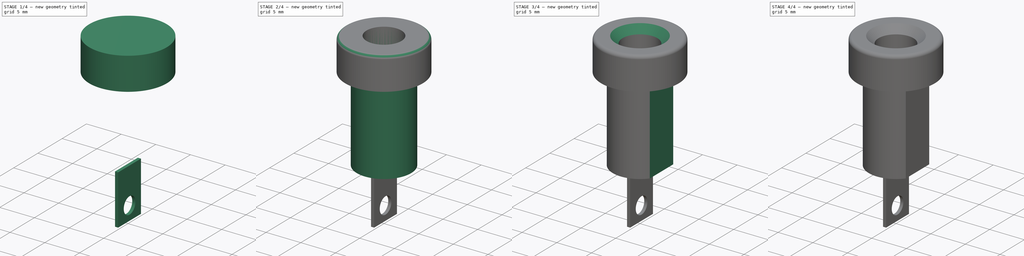
[diagram: build sequence overview — one tinted view per stage of 4, left to right]
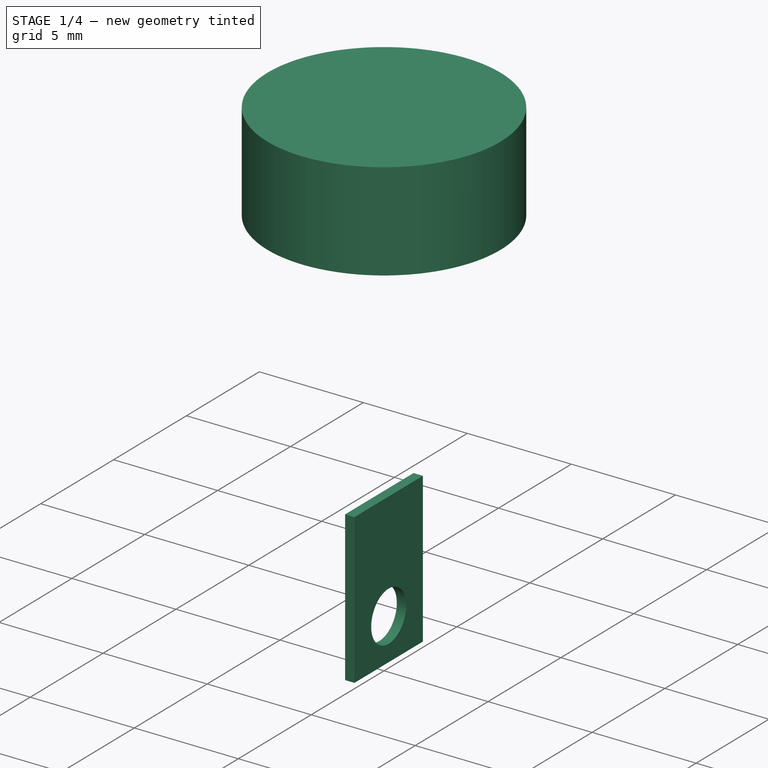
[diagram: stage 1 of 4 — iso view after this stage's code; geometry added in this stage tinted green]
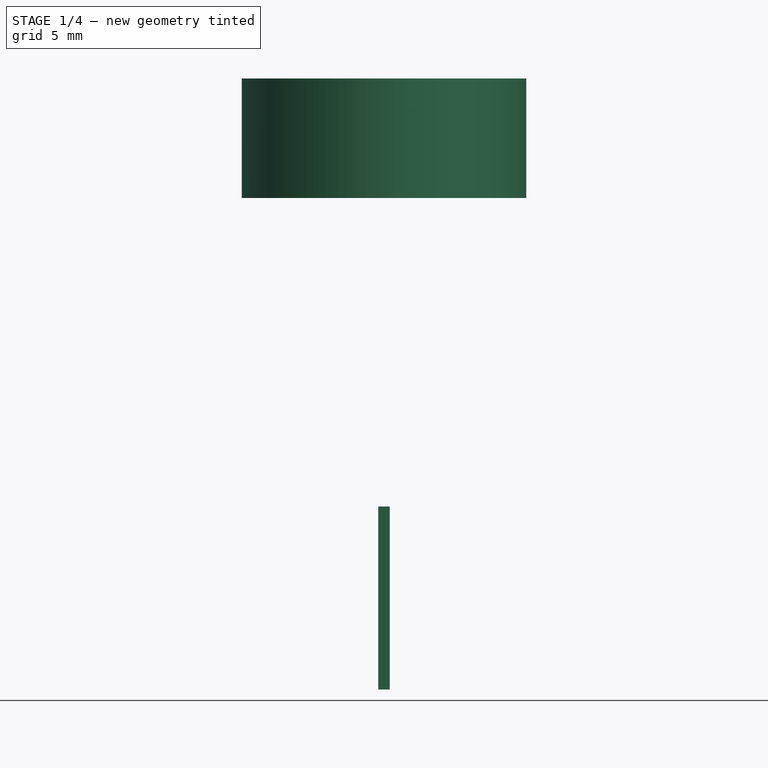
[diagram: stage 1 of 4 — front view after this stage's code; geometry added in this stage tinted green]
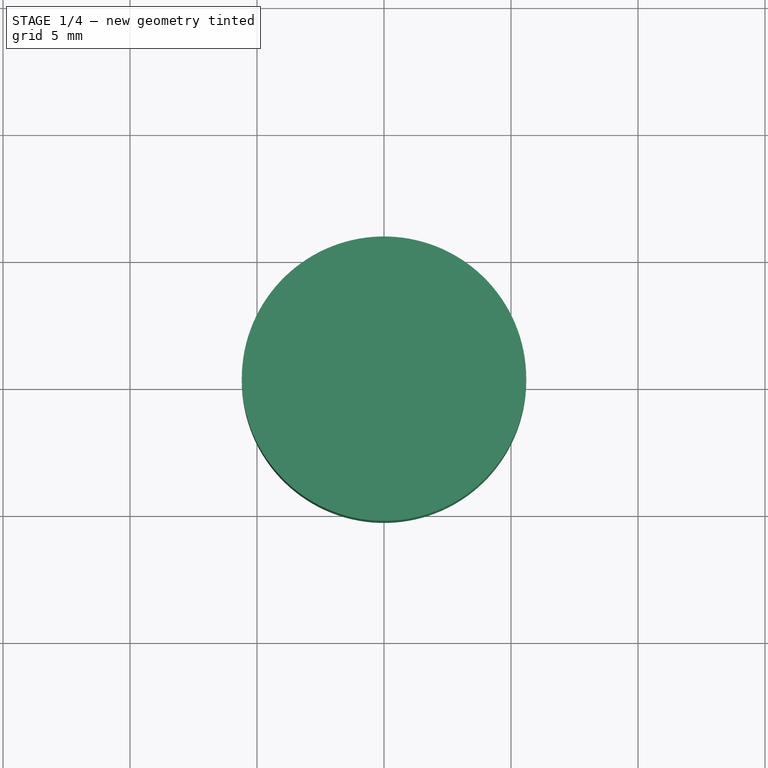
[diagram: stage 1 of 4 — top view after this stage's code; geometry added in this stage tinted green]
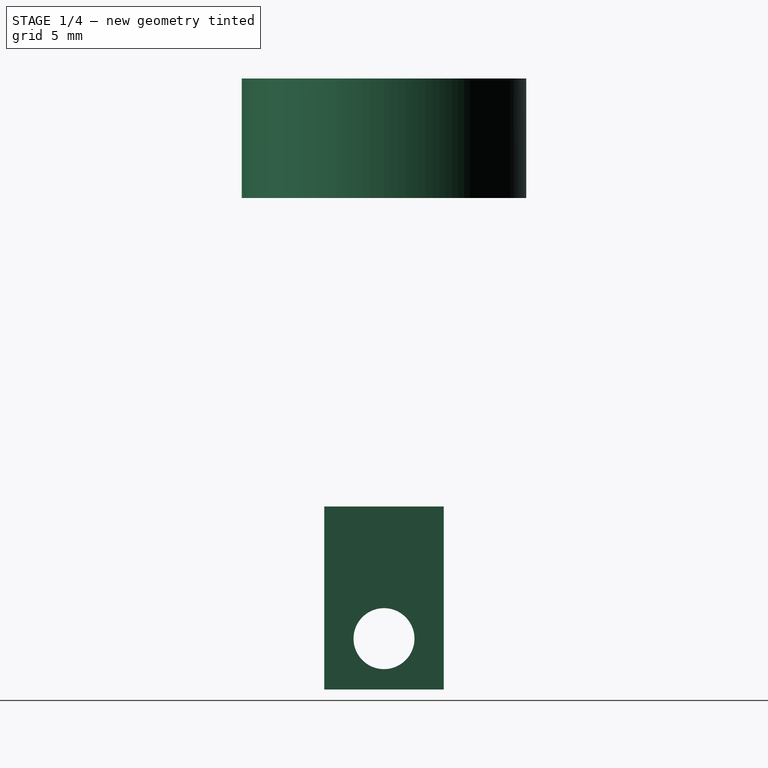
[diagram: stage 1 of 4 — right view after this stage's code; geometry added in this stage tinted green]
FCSTD DOCUMENT  (FreeCAD 1.0R39109 (Git))
Label: bannana_connectors
License: All rights reserved
LicenseURL: http://en.wikipedia.org/wiki/All_rights_reserved
objects: Sketcher::SketchObject×6, PartDesign::Body×4, PartDesign::Pad×3, PartDesign::Pocket×3, App::Part×3, PartDesign::FeatureBase×2, PartDesign::Fillet×1, PartDesign::Chamfer×1, PartDesign::Mirrored×1, PartDesign::ShapeBinder×1
note: 47 computed .brp shape members not serialized (recipe doc carries the construction recipe); baked Part::Feature solids carry a one-line shape summary decoded from their .brp

FEATURE [Sketcher::SketchObject] Sketch003
  ArcFitTolerance = 0
  AttachmentSupport = -> [XY_Plane003]
  FullyConstrained = true
  MakeInternals = false
  MapMode = 5
  sketch-geometry (1):
    g0: Circle CenterX=0 CenterY=0 CenterZ=0 NormalX=0 NormalY=0 NormalZ=1 AngleXU=0 Radius=5.6
  constraints (2):
    c: Coincident(g0,g-1)
    c: Diameter(g0) = 11.2
FEATURE [PartDesign::Pad] Pad001
  AllowMultiFace = false
  Direction = (0,0,1)
  Length = 4.7
  Length2 = 100
  Profile = -> Sketch003
  Refine = true
  Suppressed = false
  Type = 0
FEATURE [PartDesign::Body] Body001  label="red_body"
  AllowCompound = false
  Group = -> [Sketch003,Pad001,Sketch004,Pad002,Sketch005,Pocket002,Fillet,Chamfer,Sketch006,Pocket003,Mirrored]
  Origin = -> Origin003
  Tip = -> Mirrored
FEATURE [PartDesign::ShapeBinder] ShapeBinder
  Support = -> [Mirrored]
  TraceSupport = true
FEATURE [Sketcher::SketchObject] Sketch007
  ArcFitTolerance = 0
  AttachmentSupport = -> [ShapeBinder]
  FullyConstrained = true
  MakeInternals = false
  MapMode = 5
  Placement = pos=(0,0,-12.15) rot=(1,0,0;3.14159rad)
  sketch-geometry (4):
    g0: LineSegment StartX=-0.225 StartY=2.35 StartZ=0 EndX=0.225 EndY=2.35 EndZ=0
    g1: LineSegment StartX=0.225 StartY=2.35 StartZ=0 EndX=0.225 EndY=-2.35 EndZ=0
    g2: LineSegment StartX=0.225 StartY=-2.35 StartZ=0 EndX=-0.225 EndY=-2.35 EndZ=0
    g3: LineSegment StartX=-0.225 StartY=-2.35 StartZ=0 EndX=-0.225 EndY=2.35 EndZ=0
  constraints (10):
    c: Coincident(g0,g1)
    c: Coincident(g1,g2)
    c: Coincident(g2,g3)
    c: Coincident(g3,g0)
    c: Horizontal(g2)
    c: Vertical(g3)
    c: Symmetric(g0,g1,g-1)
    c: Symmetric(g0,g0,g-2)
    c: DistanceX(g0,g0) = 0.45
    c: DistanceY(g1,g1) = 4.7
FEATURE [PartDesign::Pad] Pad003
  AllowMultiFace = false
  Direction = (0,0,-1)
  Length = 7.2
  Length2 = 100
  Profile = -> Sketch007
  Refine = true
  Suppressed = false
  Type = 0
FEATURE [Sketcher::SketchObject] Sketch008
  ArcFitTolerance = 0
  AttachmentSupport = -> [Pad003]
  ExternalGeometry = -> [Pad003]
  FullyConstrained = true
  MakeInternals = false
  MapMode = 5
  Placement = pos=(0.225,0,0) rot=(0.57735,0.57735,0.57735;2.0944rad)
  sketch-geometry (1):
    g0: Circle CenterX=0 CenterY=-17.35 CenterZ=0 NormalX=0 NormalY=0 NormalZ=1 AngleXU=0 Radius=1.2
  constraints (3):
    c: PointOnObject(g0,g-2)
    c: Diameter(g0) = 2.4
    c: DistanceY(g-3,g0) = 2
FEATURE [PartDesign::Pocket] Pocket004
  AllowMultiFace = false
  BaseFeature = -> Pad003
  Direction = (-1,0,0)
  Length = 5
  Length2 = 100
  Profile = -> Sketch008
  Refine = true
  Suppressed = false
  Type = 1
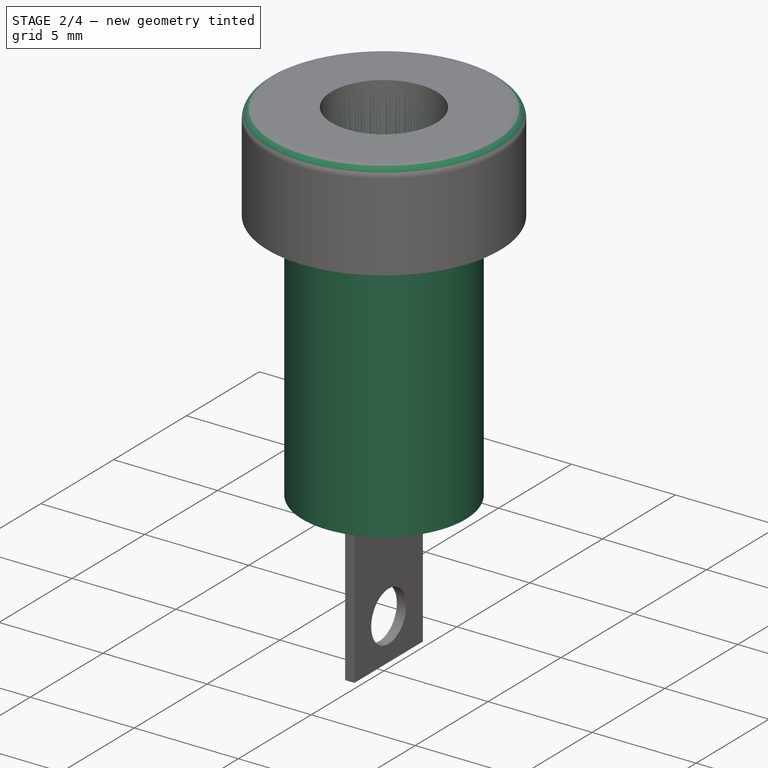
[diagram: stage 2 of 4 — iso view after this stage's code; geometry added in this stage tinted green]
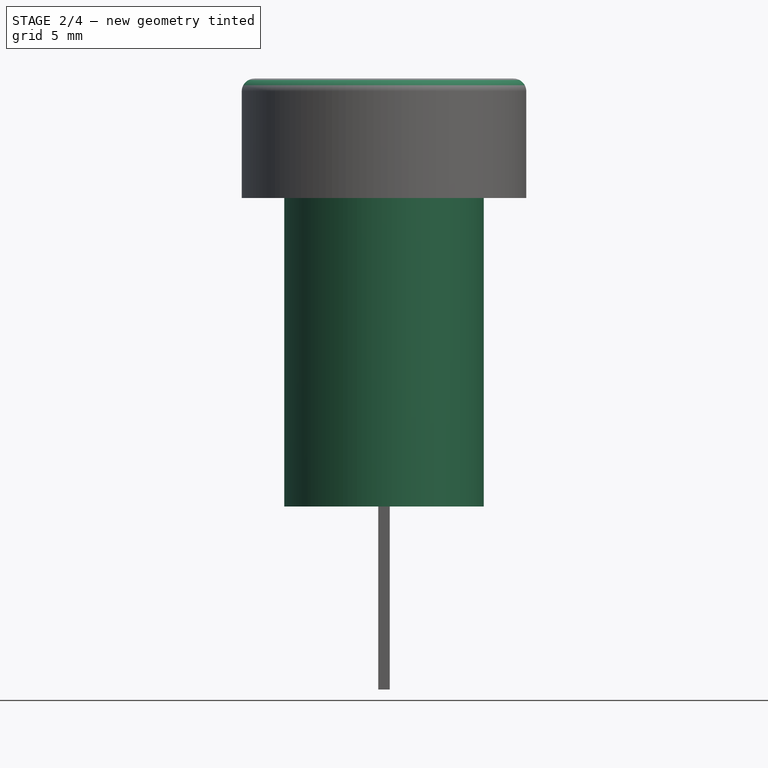
[diagram: stage 2 of 4 — front view after this stage's code; geometry added in this stage tinted green]
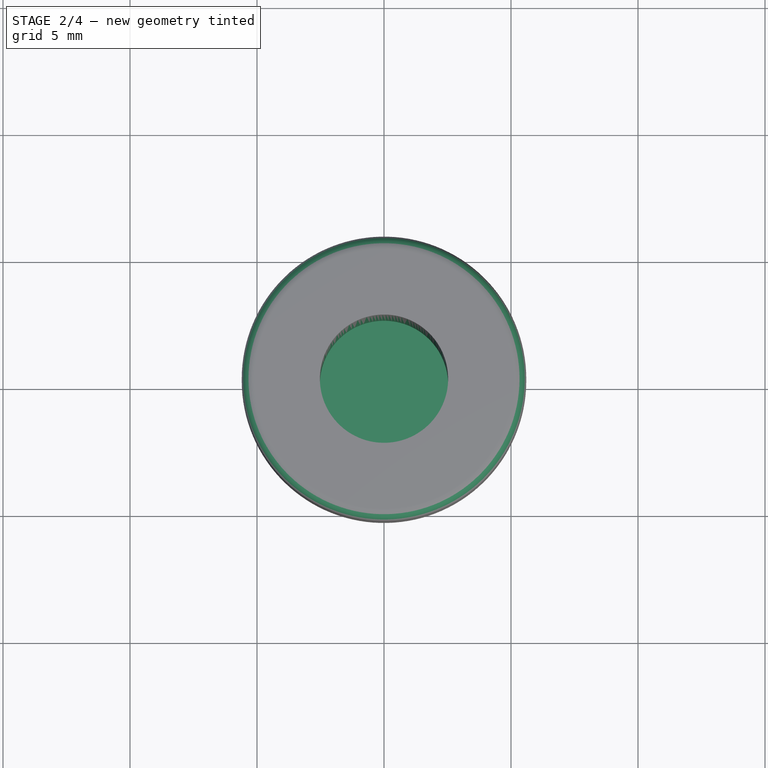
[diagram: stage 2 of 4 — top view after this stage's code; geometry added in this stage tinted green]
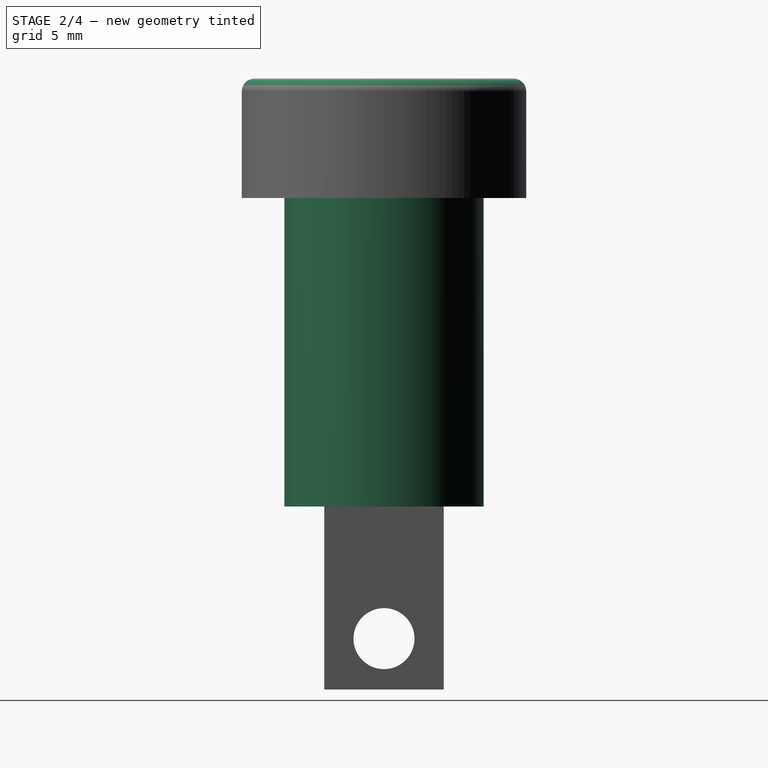
[diagram: stage 2 of 4 — right view after this stage's code; geometry added in this stage tinted green]
FEATURE [Sketcher::SketchObject] Sketch004
  ArcFitTolerance = 0
  AttachmentSupport = -> [Pad001]
  FullyConstrained = true
  MakeInternals = false
  MapMode = 5
  Placement = pos=(0,0,0) rot=(1,0,0;3.14159rad)
  sketch-geometry (1):
    g0: Circle CenterX=0 CenterY=0 CenterZ=0 NormalX=0 NormalY=0 NormalZ=1 AngleXU=0 Radius=3.925
  constraints (2):
    c: Coincident(g0,g-1)
    c: Diameter(g0) = 7.85
FEATURE [PartDesign::Pad] Pad002
  AllowMultiFace = false
  BaseFeature = -> Pad001
  Direction = (0,0,-1)
  Length = 12.15
  Length2 = 100
  Profile = -> Sketch004
  Refine = true
  Suppressed = false
  Type = 0
FEATURE [Sketcher::SketchObject] Sketch005
  ArcFitTolerance = 0
  AttachmentSupport = -> [Pad002]
  FullyConstrained = true
  MakeInternals = false
  MapMode = 5
  Placement = pos=(0,0,4.7) rot=(0,0,1;0rad)
  sketch-geometry (1):
    g0: Circle CenterX=0 CenterY=0 CenterZ=0 NormalX=0 NormalY=0 NormalZ=1 AngleXU=0 Radius=2.525
  constraints (2):
    c: Coincident(g0,g-1)
    c: Diameter(g0) = 5.05
FEATURE [PartDesign::Pocket] Pocket002
  AllowMultiFace = false
  BaseFeature = -> Pad002
  Direction = (0,0,-1)
  Length = 14
  Length2 = 100
  Profile = -> Sketch005
  Refine = true
  Suppressed = false
  Type = 0
FEATURE [PartDesign::Fillet] Fillet
  Base = -> Pocket002 [Edge3]
  BaseFeature = -> Pocket002
  Radius = 0.5
  Refine = true
  SupportTransform = false
  Suppressed = false
  UseAllEdges = false
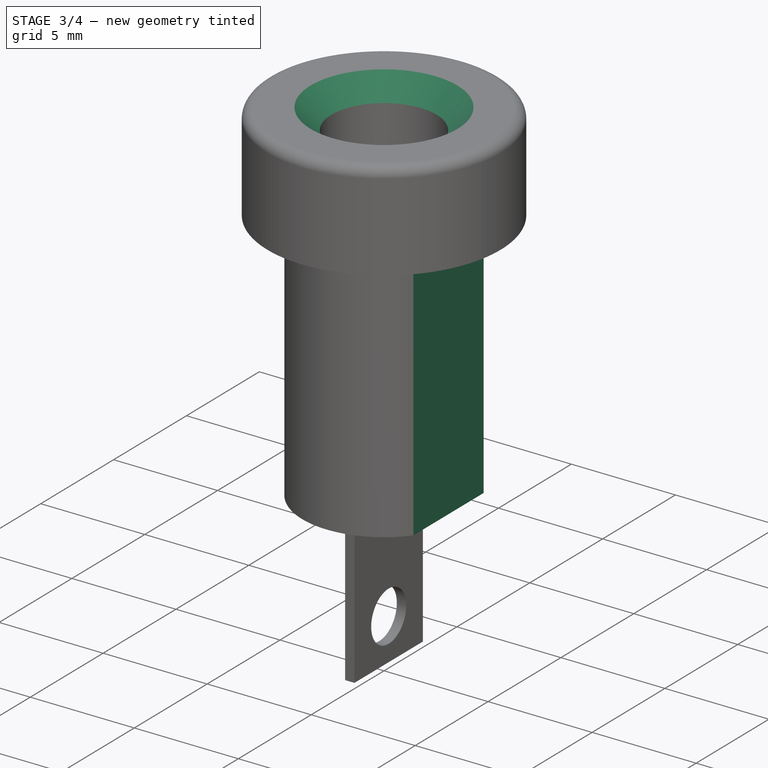
[diagram: stage 3 of 4 — iso view after this stage's code; geometry added in this stage tinted green]
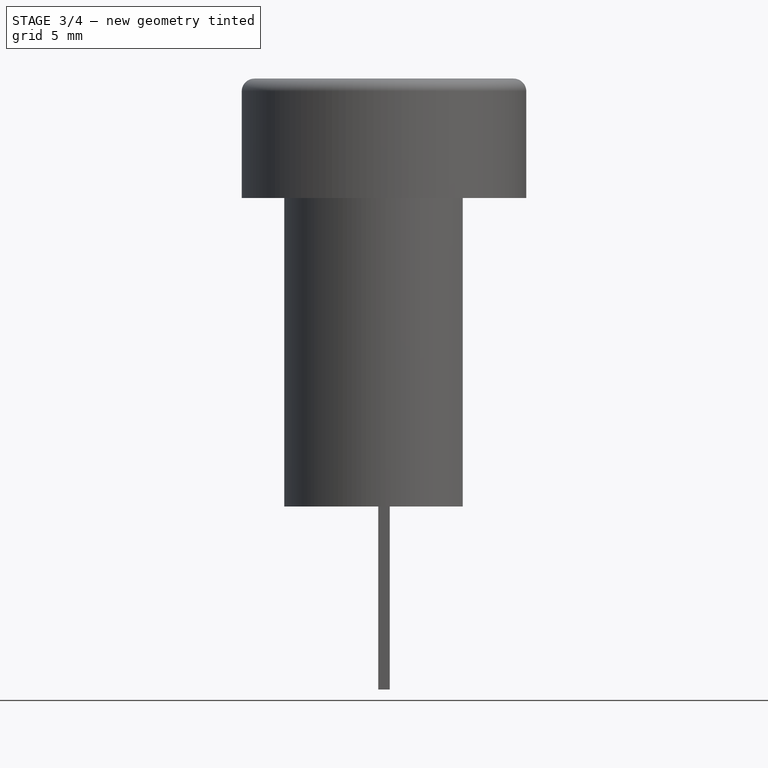
[diagram: stage 3 of 4 — front view after this stage's code; geometry added in this stage tinted green]
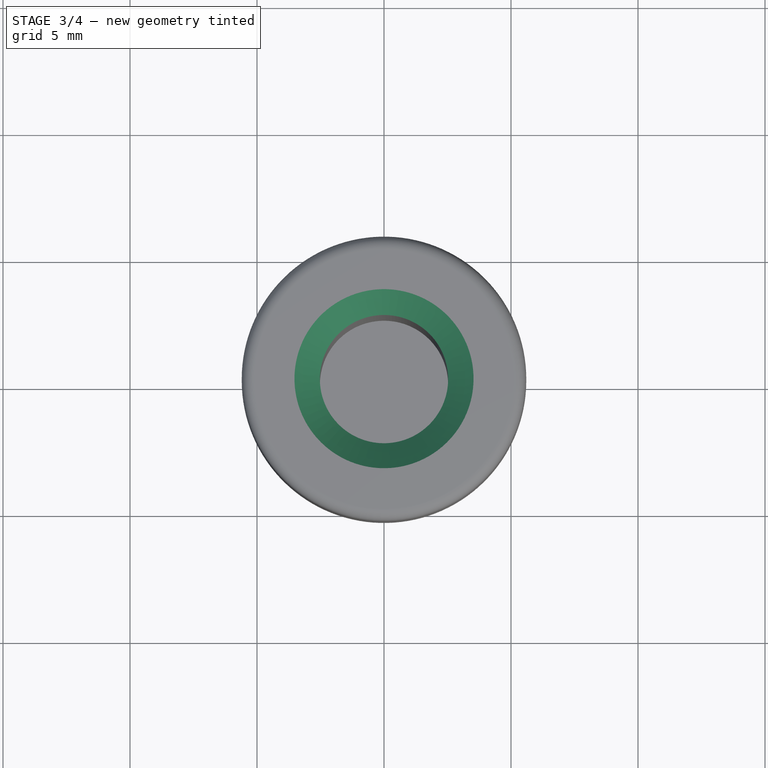
[diagram: stage 3 of 4 — top view after this stage's code; geometry added in this stage tinted green]
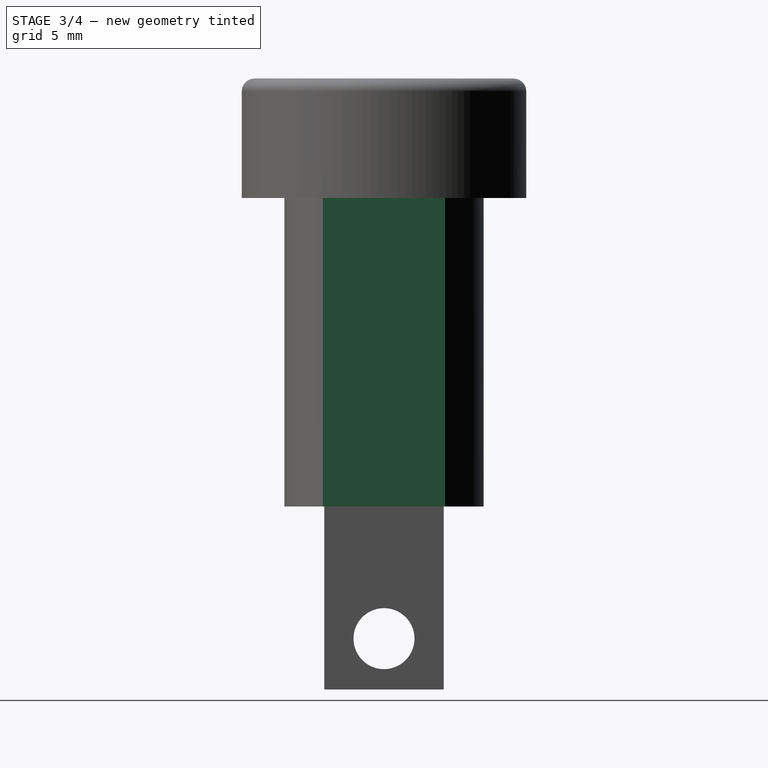
[diagram: stage 3 of 4 — right view after this stage's code; geometry added in this stage tinted green]
FEATURE [PartDesign::Chamfer] Chamfer
  Angle = 45
  Base = -> Fillet [Edge7]
  BaseFeature = -> Fillet
  ChamferType = 0
  FlipDirection = false
  Refine = true
  Size = 1
  Size2 = 1
  SupportTransform = false
  Suppressed = false
  UseAllEdges = false
FEATURE [Sketcher::SketchObject] Sketch006
  ArcFitTolerance = 0
  AttachmentSupport = -> [Chamfer]
  ExternalGeometry = -> [Chamfer]
  FullyConstrained = true
  MakeInternals = false
  MapMode = 5
  Placement = pos=(0,0,-12.15) rot=(1,0,0;3.14159rad)
  sketch-geometry (2):
    g0: LineSegment StartX=3.1 StartY=2.40741 StartZ=0 EndX=3.1 EndY=-2.40741 EndZ=0
    g1: ArcOfCircle CenterX=0 CenterY=-2e-16 CenterZ=0 NormalX=0 NormalY=0 NormalZ=1 AngleXU=0 Radius=3.925 StartAngle=5.62289 EndAngle=6.94348
  constraints (7):
    c: PointOnObject(g0,g-3)
    c: PointOnObject(g0,g-3)
    c: Vertical(g0)
    c: Coincident(g1,g0)
    c: Coincident(g1,g0)
    c: Equal(g-3,g1)
    c: DistanceX(g1,g0) = 3.1
FEATURE [PartDesign::Pocket] Pocket003
  AllowMultiFace = false
  BaseFeature = -> Chamfer
  Direction = (0,0,1)
  Length = 0
  Length2 = 100
  Profile = -> Sketch006
  Refine = true
  Suppressed = false
  Type = 3
  UpToFace = -> Chamfer [Face7]
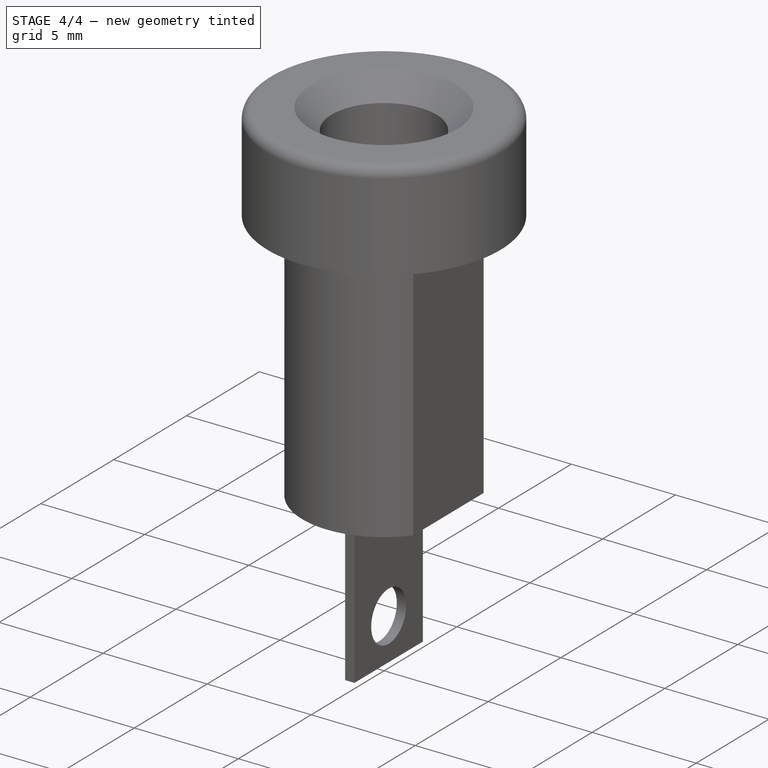
[diagram: stage 4 of 4 — iso view after this stage's code; geometry added in this stage tinted green]
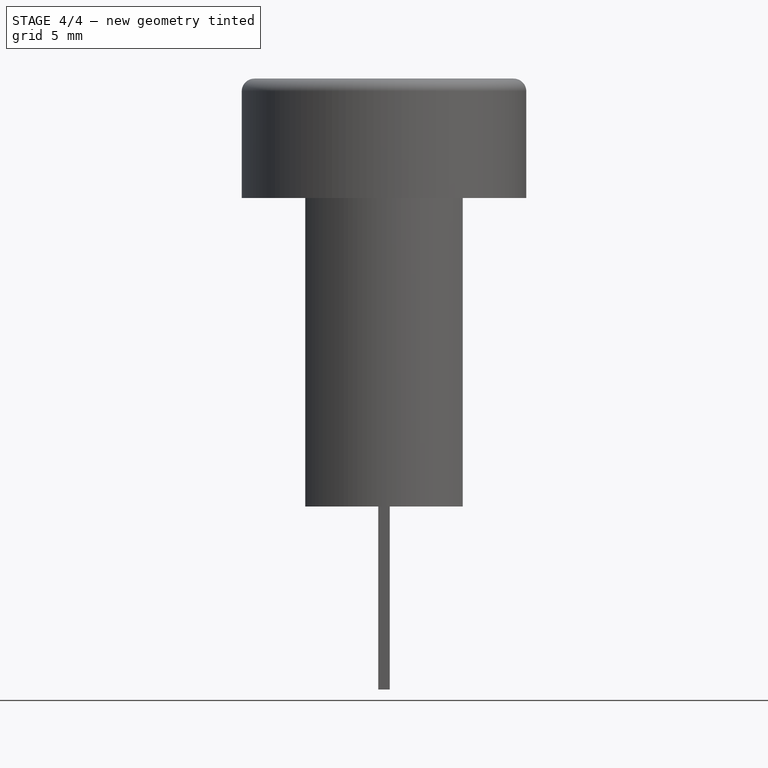
[diagram: stage 4 of 4 — front view after this stage's code; geometry added in this stage tinted green]
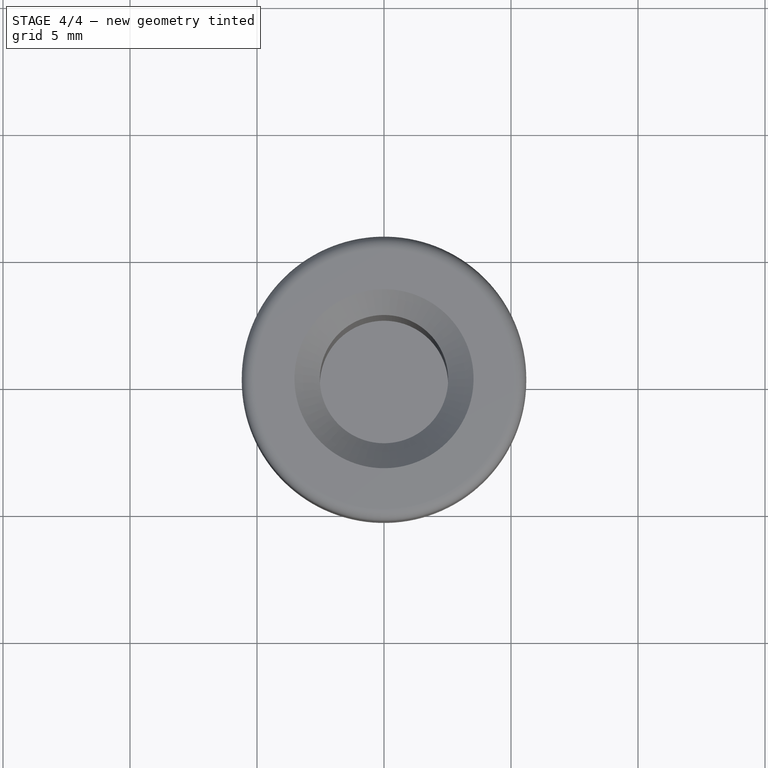
[diagram: stage 4 of 4 — top view after this stage's code; geometry added in this stage tinted green]
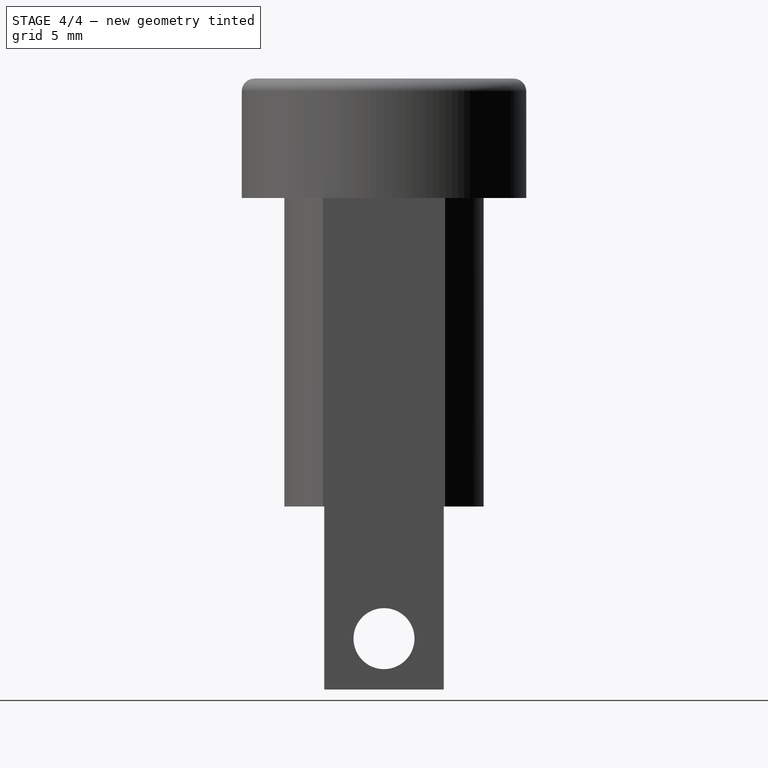
[diagram: stage 4 of 4 — right view after this stage's code; geometry added in this stage tinted green]
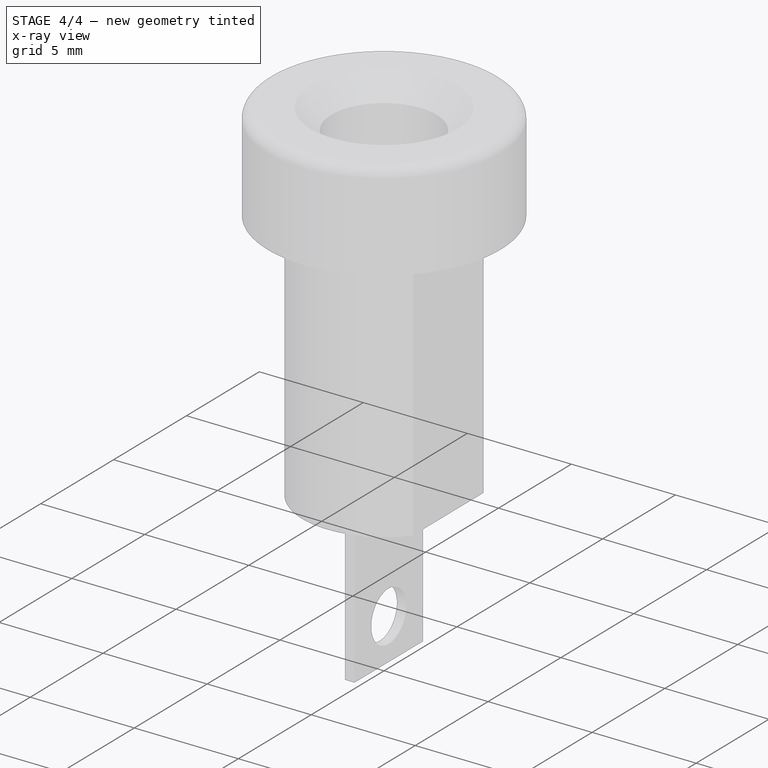
[diagram: stage 4 of 4 — x-ray composite at the iso view; earlier geometry ghosted, this stage's added geometry solid]
FEATURE [PartDesign::Mirrored] Mirrored
  BaseFeature = -> Pocket003
  MirrorPlane = -> Sketch006 [V_Axis]
  Originals = -> [Pocket003]
  Refine = true
  Suppressed = false
  TransformMode = 0
FEATURE [PartDesign::Body] Body002  label="red_pin"
  AllowCompound = false
  Group = -> [ShapeBinder,Sketch007,Pad003,Sketch008,Pocket004]
  Origin = -> Origin004
  Tip = -> Pocket004
FEATURE [App::Part] Part002  label="red_banana"
  Group = -> [Body001,Body002]
  Origin = -> Origin005
FEATURE [PartDesign::FeatureBase] Clone
  BaseFeature = -> Body001
  Suppressed = false
FEATURE [PartDesign::Body] Body003  label="black_body"
  AllowCompound = false
  Group = -> [Clone]
  Origin = -> Origin007
  Tip = -> Clone
FEATURE [PartDesign::FeatureBase] Clone001
  BaseFeature = -> Body002
  Suppressed = false
FEATURE [PartDesign::Body] Body004  label="black_pin"
  AllowCompound = false
  Group = -> [Clone001]
  Origin = -> Origin008
  Tip = -> Clone001
FEATURE [App::Part] Part003  label="black_banana"
  Group = -> [Body003,Body004]
  Origin = -> Origin006
  Placement = pos=(19.05,0,0) rot=(0,0,1;0rad)
FEATURE [App::Part] Part001  label="banana connectors"
  Group = -> [Part002,Part003]
  Origin = -> Origin002
  Placement = pos=(-9.525,-21,19.3) rot=(0,0,1;0rad)
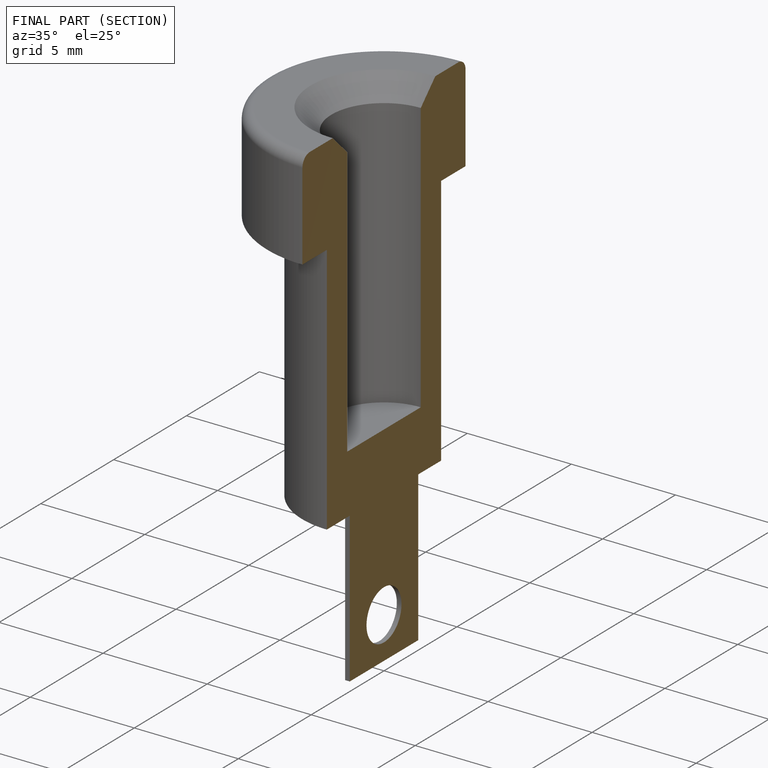
[diagram: finished part — half-section view (interior)]
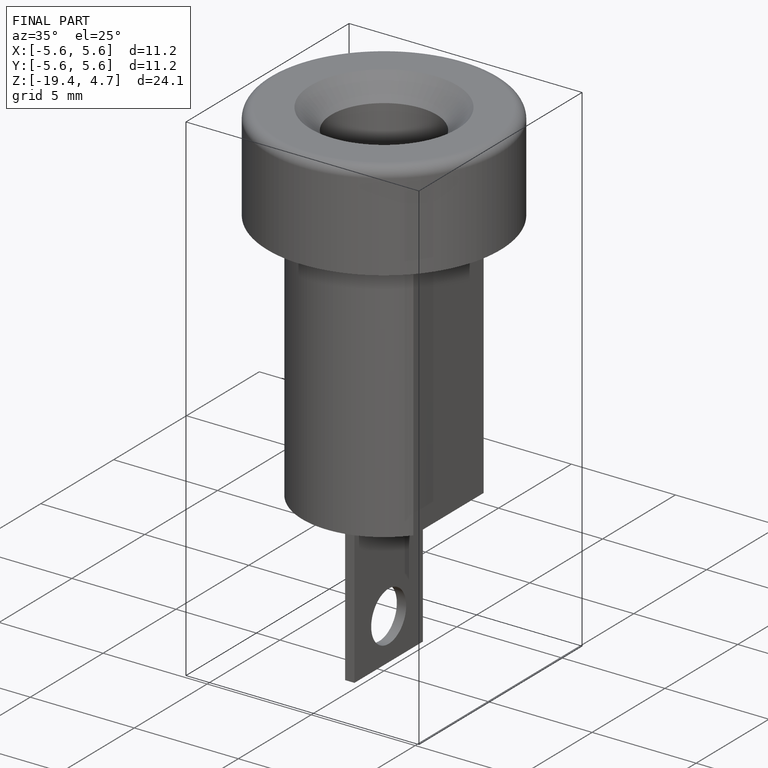
[diagram: finished part — iso view with bounding-box wireframe]
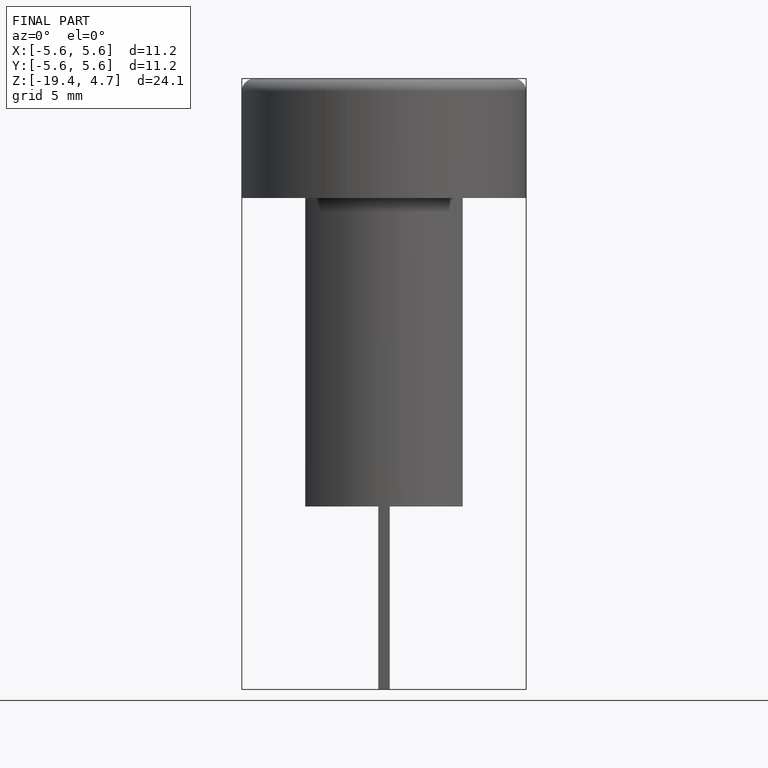
[diagram: finished part — front view with bounding-box wireframe]
